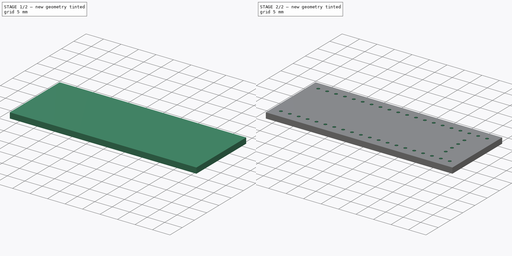
[diagram: build sequence overview — one tinted view per stage of 2, left to right]
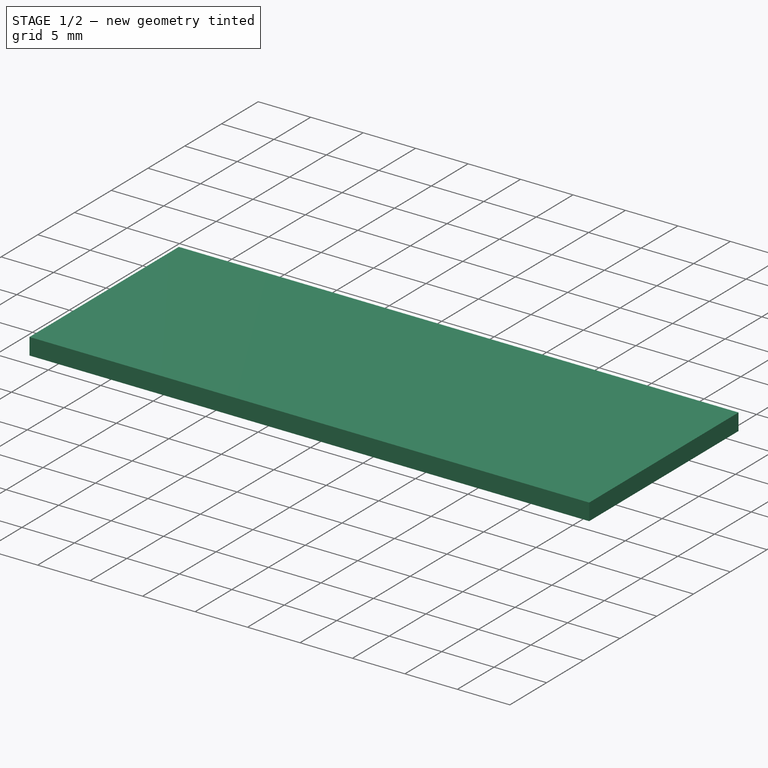
[diagram: stage 1 of 2 — iso view after this stage's code; geometry added in this stage tinted green]
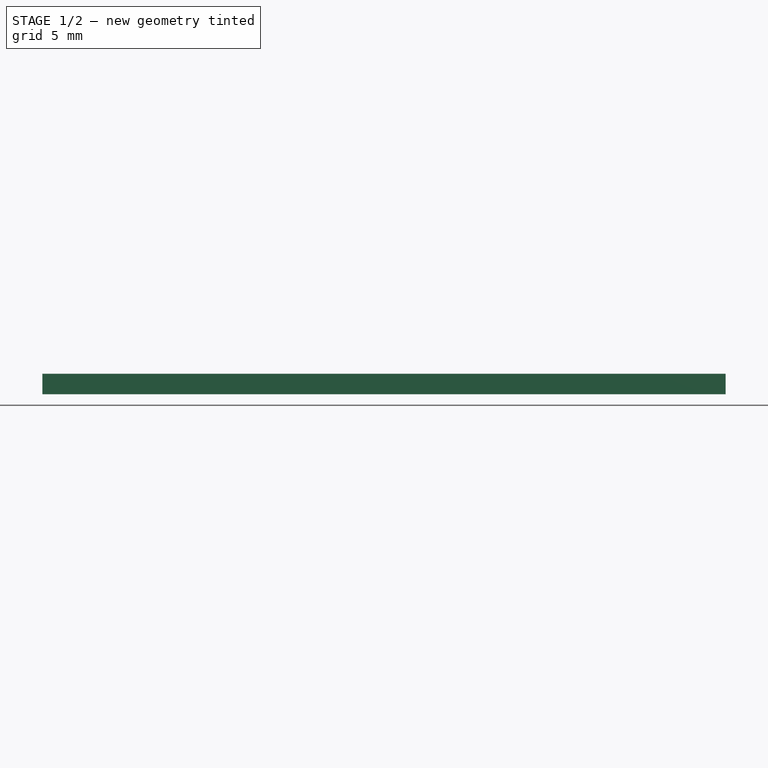
[diagram: stage 1 of 2 — front view after this stage's code; geometry added in this stage tinted green]
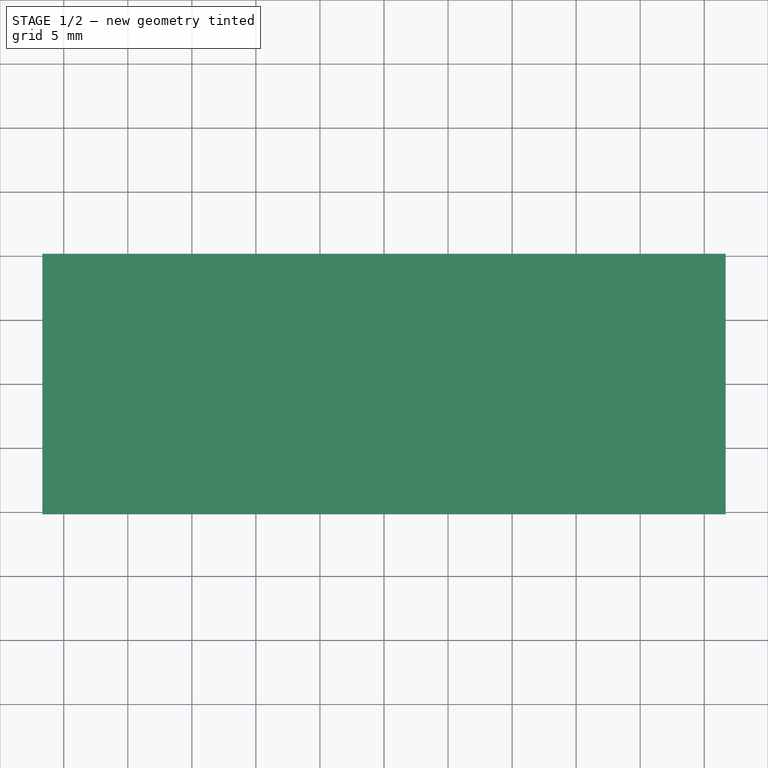
[diagram: stage 1 of 2 — top view after this stage's code; geometry added in this stage tinted green]
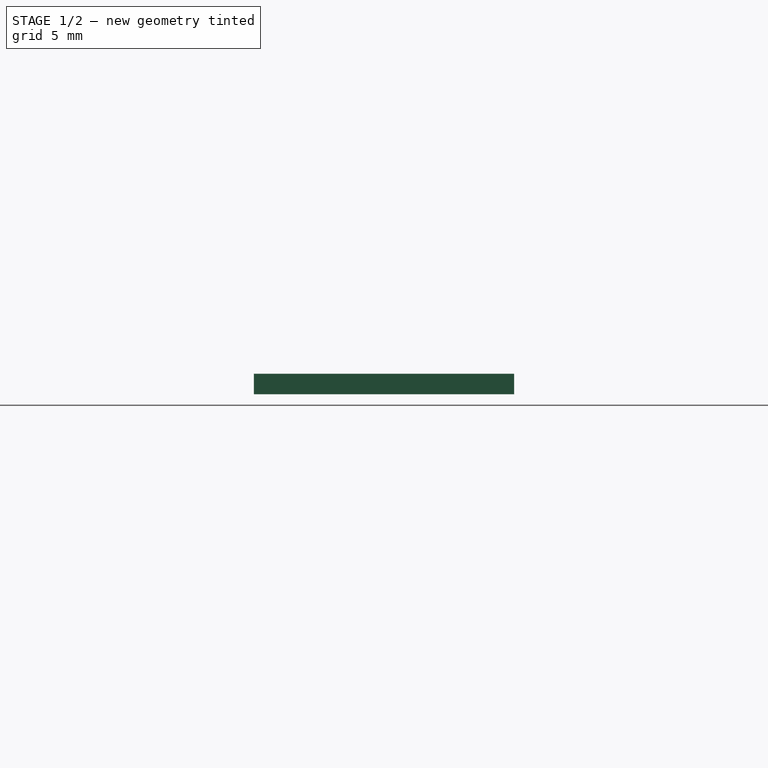
[diagram: stage 1 of 2 — right view after this stage's code; geometry added in this stage tinted green]
FCSTD DOCUMENT  (FreeCAD 0.20R29177 (Git))
Label: Board
License: All rights reserved
LicenseURL: http://en.wikipedia.org/wiki/All_rights_reserved
objects: Sketcher::SketchObject×2, PartDesign::Pad×1, PartDesign::Pocket×1, PartDesign::Body×1
note: 7 computed .brp shape members not serialized (recipe doc carries the construction recipe); baked Part::Feature solids carry a one-line shape summary decoded from their .brp

FEATURE [Sketcher::SketchObject] Sketch
  FullyConstrained = true
  MapMode = 5
  Support = -> [XY_Plane]
  sketch-geometry (4):
    g0: LineSegment StartX=-26.67 StartY=10.16 StartZ=0 EndX=26.67 EndY=10.16 EndZ=0
    g1: LineSegment StartX=26.67 StartY=10.16 StartZ=0 EndX=26.67 EndY=-10.16 EndZ=0
    g2: LineSegment StartX=26.67 StartY=-10.16 StartZ=0 EndX=-26.67 EndY=-10.16 EndZ=0
    g3: LineSegment StartX=-26.67 StartY=-10.16 StartZ=0 EndX=-26.67 EndY=10.16 EndZ=0
  constraints (11):
    c: Coincident(g0,g1)
    c: Coincident(g1,g2)
    c: Coincident(g2,g3)
    c: Coincident(g3,g0)
    c: Horizontal(g0)
    c: Horizontal(g2)
    c: Vertical(g1)
    c: Vertical(g3)
    c: Symmetric(g1,g0,g-1)
    c: DistanceY(g3,g3) = 20.32
    c: DistanceX(g0,g0) = 53.34
FEATURE [PartDesign::Pad] Pad
  Direction = (0,0,1)
  Length = 1.6
  Length2 = 10
  Profile = -> Sketch
  ReferenceAxis = -> Sketch [N_Axis]
  Reversed = true
  Type = 0
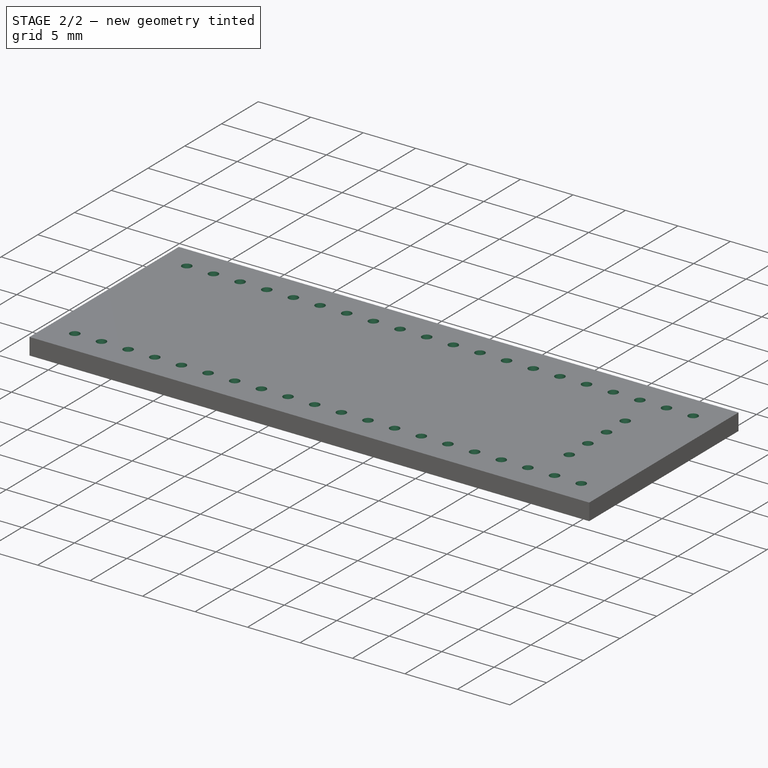
[diagram: stage 2 of 2 — iso view after this stage's code; geometry added in this stage tinted green]
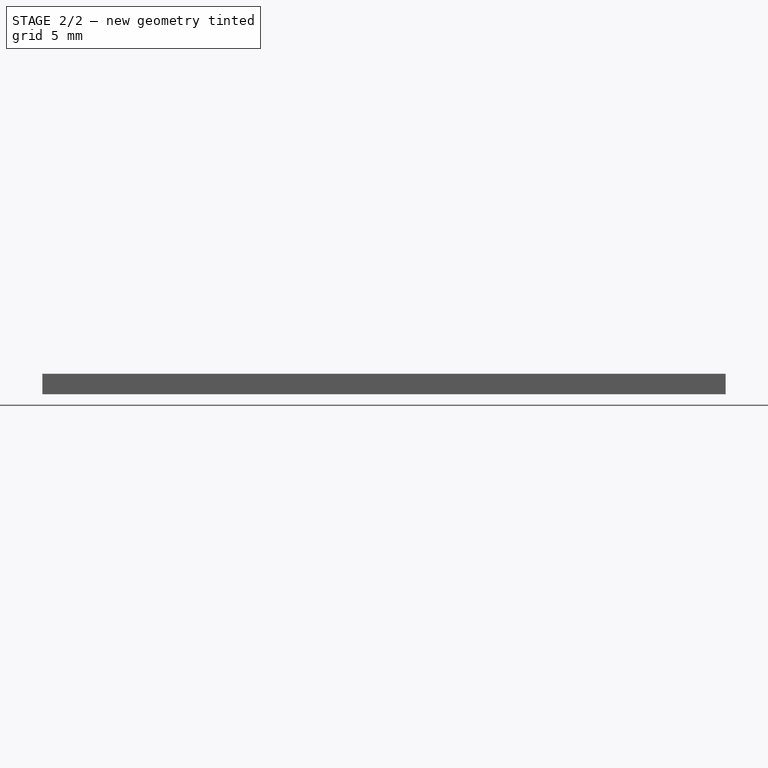
[diagram: stage 2 of 2 — front view after this stage's code; geometry added in this stage tinted green]
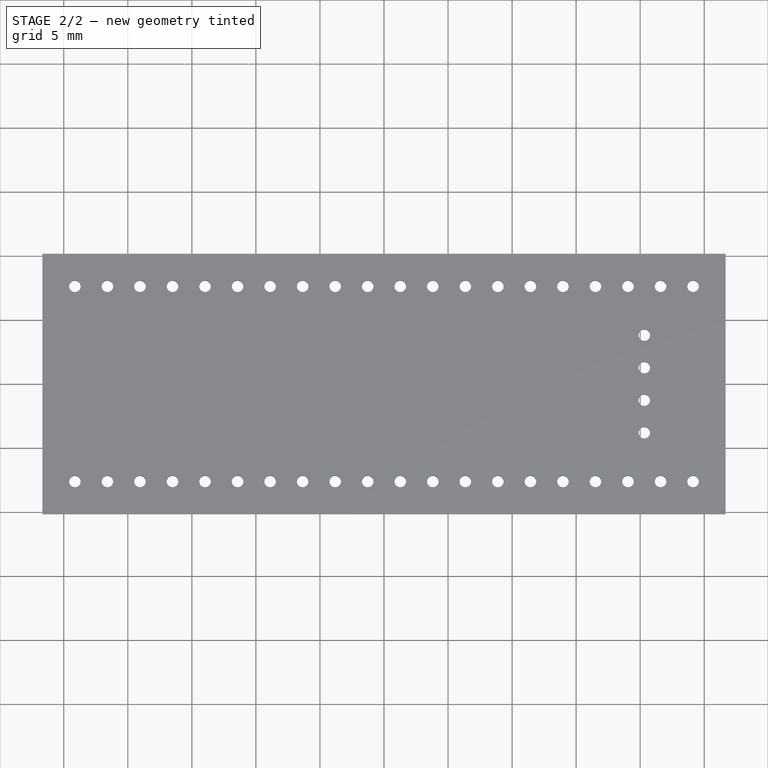
[diagram: stage 2 of 2 — top view after this stage's code; geometry added in this stage tinted green]
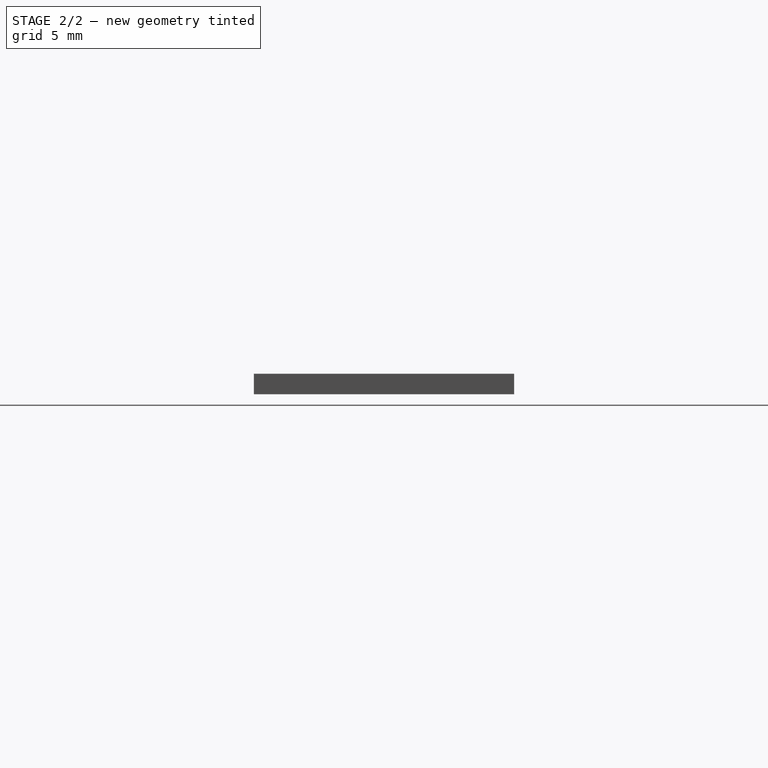
[diagram: stage 2 of 2 — right view after this stage's code; geometry added in this stage tinted green]
FEATURE [Sketcher::SketchObject] Sketch001
  FullyConstrained = true
  MapMode = 5
  Support = -> [Pad]
  sketch-geometry (87):
    g0: LineSegment StartX=-24.13 StartY=7.62 StartZ=0 EndX=-21.59 EndY=7.61999 EndZ=0
    g1: LineSegment StartX=-21.59 StartY=7.61999 StartZ=0 EndX=-19.05 EndY=7.61999 EndZ=0
    g2: LineSegment StartX=-19.05 StartY=7.61999 StartZ=0 EndX=-16.51 EndY=7.61999 EndZ=0
    g3: LineSegment StartX=-16.51 StartY=7.61999 StartZ=0 EndX=-13.97 EndY=7.61999 EndZ=0
    g4: LineSegment StartX=-13.97 StartY=7.61999 StartZ=0 EndX=-11.43 EndY=7.61999 EndZ=0
    g5: LineSegment StartX=-11.43 StartY=7.61999 StartZ=0 EndX=-8.89 EndY=7.61999 EndZ=0
    g6: LineSegment StartX=-8.89 StartY=7.61999 StartZ=0 EndX=-6.35 EndY=7.61999 EndZ=0
    g7: LineSegment StartX=-6.35 StartY=7.61999 StartZ=0 EndX=-3.81 EndY=7.61999 EndZ=0
    g8: LineSegment StartX=-3.81 StartY=7.61999 StartZ=0 EndX=-1.27 EndY=7.61999 EndZ=0
    g9: LineSegment StartX=-1.27 StartY=7.61999 StartZ=0 EndX=1.27 EndY=7.61999 EndZ=0
    g10: LineSegment StartX=1.27 StartY=7.61999 StartZ=0 EndX=3.81 EndY=7.61999 EndZ=0
    g11: LineSegment StartX=3.81 StartY=7.61999 StartZ=0 EndX=6.35 EndY=7.61999 EndZ=0
    g12: LineSegment StartX=6.35 StartY=7.61999 StartZ=0 EndX=8.89 EndY=7.61999 EndZ=0
    g13: LineSegment StartX=8.89 StartY=7.61999 StartZ=0 EndX=11.43 EndY=7.61999 EndZ=0
    g14: LineSegment StartX=11.43 StartY=7.61999 StartZ=0 EndX=13.97 EndY=7.61999 EndZ=0
    g15: LineSegment StartX=13.97 StartY=7.61999 StartZ=0 EndX=16.51 EndY=7.61999 EndZ=0
    g16: LineSegment StartX=16.51 StartY=7.61999 StartZ=0 EndX=19.05 EndY=7.61999 EndZ=0
    g17: LineSegment StartX=19.05 StartY=7.61999 StartZ=0 EndX=21.59 EndY=7.61999 EndZ=0
    g18: LineSegment StartX=21.59 StartY=7.61999 StartZ=0 EndX=24.13 EndY=7.61999 EndZ=0
    g19: LineSegment StartX=-24.13 StartY=-7.62 StartZ=0 EndX=-21.59 EndY=-7.62 EndZ=0
    g20: LineSegment StartX=-21.59 StartY=-7.62 StartZ=0 EndX=-19.05 EndY=-7.62 EndZ=0
    g21: LineSegment StartX=-19.05 StartY=-7.62 StartZ=0 EndX=-16.51 EndY=-7.62 EndZ=0
    g22: LineSegment StartX=-16.51 StartY=-7.62 StartZ=0 EndX=-13.97 EndY=-7.62 EndZ=0
    g23: LineSegment StartX=-13.97 StartY=-7.62 StartZ=0 EndX=-11.43 EndY=-7.62 EndZ=0
    g24: LineSegment StartX=-11.43 StartY=-7.62 StartZ=0 EndX=-8.89 EndY=-7.62 EndZ=0
    g25: LineSegment StartX=-8.89 StartY=-7.62 StartZ=0 EndX=-6.35 EndY=-7.62 EndZ=0
    g26: LineSegment StartX=-6.35 StartY=-7.62 StartZ=0 EndX=-3.81 EndY=-7.62 EndZ=0
    g27: LineSegment StartX=-3.81 StartY=-7.62 StartZ=0 EndX=-1.27 EndY=-7.62 EndZ=0
    g28: LineSegment StartX=-1.27 StartY=-7.62 StartZ=0 EndX=1.27 EndY=-7.62 EndZ=0
    g29: LineSegment StartX=1.27 StartY=-7.62 StartZ=0 EndX=3.81 EndY=-7.62 EndZ=0
    g30: LineSegment StartX=3.81 StartY=-7.62 StartZ=0 EndX=6.35 EndY=-7.62 EndZ=0
    g31: LineSegment StartX=6.35 StartY=-7.62 StartZ=0 EndX=8.89 EndY=-7.62 EndZ=0
    g32: LineSegment StartX=8.89 StartY=-7.62 StartZ=0 EndX=11.43 EndY=-7.62 EndZ=0
    g33: LineSegment StartX=11.43 StartY=-7.62 StartZ=0 EndX=13.97 EndY=-7.62 EndZ=0
    g34: LineSegment StartX=13.97 StartY=-7.62 StartZ=0 EndX=16.51 EndY=-7.62 EndZ=0
    g35: LineSegment StartX=16.51 StartY=-7.62 StartZ=0 EndX=19.05 EndY=-7.62 EndZ=0
    g36: LineSegment StartX=19.05 StartY=-7.62 StartZ=0 EndX=21.59 EndY=-7.62 EndZ=0
    g37: LineSegment StartX=21.59 StartY=-7.62 StartZ=0 EndX=24.13 EndY=-7.62 EndZ=0
    g38: Circle CenterX=-24.13 CenterY=7.62 CenterZ=0 NormalX=0 NormalY=0 NormalZ=1 AngleXU=0 Radius=0.45
    g39: Circle CenterX=-21.59 CenterY=7.61999 CenterZ=0 NormalX=0 NormalY=0 NormalZ=1 AngleXU=0 Radius=0.45
    g40: Circle CenterX=-19.05 CenterY=7.61999 CenterZ=0 NormalX=0 NormalY=0 NormalZ=1 AngleXU=0 Radius=0.45
    g41: Circle CenterX=-16.51 CenterY=7.61999 CenterZ=0 NormalX=0 NormalY=0 NormalZ=1 AngleXU=0 Radius=0.45
    g42: Circle CenterX=-13.97 CenterY=7.61999 CenterZ=0 NormalX=0 NormalY=0 NormalZ=1 AngleXU=0 Radius=0.45
    g43: Circle CenterX=-11.43 CenterY=7.61999 CenterZ=0 NormalX=0 NormalY=0 NormalZ=1 AngleXU=0 Radius=0.45
    g44: Circle CenterX=-8.89 CenterY=7.61999 CenterZ=0 NormalX=0 NormalY=0 NormalZ=1 AngleXU=0 Radius=0.45
    g45: Circle CenterX=-6.35 CenterY=7.61999 CenterZ=0 NormalX=0 NormalY=0 NormalZ=1 AngleXU=0 Radius=0.45
    g46: Circle CenterX=-3.81 CenterY=7.61999 CenterZ=0 NormalX=0 NormalY=0 NormalZ=1 AngleXU=0 Radius=0.45
    g47: Circle CenterX=-1.27 CenterY=7.61999 CenterZ=0 NormalX=0 NormalY=0 NormalZ=1 AngleXU=0 Radius=0.45
    g48: Circle CenterX=1.27 CenterY=7.61999 CenterZ=0 NormalX=0 NormalY=0 NormalZ=1 AngleXU=0 Radius=0.45
    g49: Circle CenterX=3.81 CenterY=7.61999 CenterZ=0 NormalX=0 NormalY=0 NormalZ=1 AngleXU=0 Radius=0.45
    g50: Circle CenterX=6.35 CenterY=7.61999 CenterZ=0 NormalX=0 NormalY=0 NormalZ=1 AngleXU=0 Radius=0.45
    g51: Circle CenterX=8.89 CenterY=7.61999 CenterZ=0 NormalX=0 NormalY=0 NormalZ=1 AngleXU=0 Radius=0.45
    g52: Circle CenterX=11.43 CenterY=7.61999 CenterZ=0 NormalX=0 NormalY=0 NormalZ=1 AngleXU=0 Radius=0.45
    g53: Circle CenterX=13.97 CenterY=7.61999 CenterZ=0 NormalX=0 NormalY=0 NormalZ=1 AngleXU=0 Radius=0.45
    g54: Circle CenterX=16.51 CenterY=7.61999 CenterZ=0 NormalX=0 NormalY=0 NormalZ=1 AngleXU=0 Radius=0.45
    g55: Circle CenterX=19.05 CenterY=7.61999 CenterZ=0 NormalX=0 NormalY=0 NormalZ=1 AngleXU=0 Radius=0.45
    g56: Circle CenterX=21.59 CenterY=7.61999 CenterZ=0 NormalX=0 NormalY=0 NormalZ=1 AngleXU=0 Radius=0.45
    g57: Circle CenterX=24.13 CenterY=7.61999 CenterZ=0 NormalX=0 NormalY=0 NormalZ=1 AngleXU=0 Radius=0.45
    g58: Circle CenterX=-24.13 CenterY=-7.62 CenterZ=0 NormalX=0 NormalY=0 NormalZ=1 AngleXU=0 Radius=0.45
    g59: Circle CenterX=-21.59 CenterY=-7.62 CenterZ=0 NormalX=0 NormalY=0 NormalZ=1 AngleXU=0 Radius=0.45
    g60: Circle CenterX=-19.05 CenterY=-7.62 CenterZ=0 NormalX=0 NormalY=0 NormalZ=1 AngleXU=0 Radius=0.45
    g61: Circle CenterX=-16.51 CenterY=-7.62 CenterZ=0 NormalX=0 NormalY=0 NormalZ=1 AngleXU=0 Radius=0.45
    g62: Circle CenterX=-13.97 CenterY=-7.62 CenterZ=0 NormalX=0 NormalY=0 NormalZ=1 AngleXU=0 Radius=0.45
    g63: Circle CenterX=-11.43 CenterY=-7.62 CenterZ=0 NormalX=0 NormalY=0 NormalZ=1 AngleXU=0 Radius=0.45
    g64: Circle CenterX=-8.89 CenterY=-7.62 CenterZ=0 NormalX=0 NormalY=0 NormalZ=1 AngleXU=0 Radius=0.45
    g65: Circle CenterX=-6.35 CenterY=-7.62 CenterZ=0 NormalX=0 NormalY=0 NormalZ=1 AngleXU=0 Radius=0.45
    g66: Circle CenterX=-3.81 CenterY=-7.62 CenterZ=0 NormalX=0 NormalY=0 NormalZ=1 AngleXU=0 Radius=0.45
    g67: Circle CenterX=-1.27 CenterY=-7.62 CenterZ=0 NormalX=0 NormalY=0 NormalZ=1 AngleXU=0 Radius=0.45
    g68: Circle CenterX=1.27 CenterY=-7.62 CenterZ=0 NormalX=0 NormalY=0 NormalZ=1 AngleXU=0 Radius=0.45
    g69: Circle CenterX=3.81 CenterY=-7.62 CenterZ=0 NormalX=0 NormalY=0 NormalZ=1 AngleXU=0 Radius=0.45
    g70: Circle CenterX=6.35 CenterY=-7.62 CenterZ=0 NormalX=0 NormalY=0 NormalZ=1 AngleXU=0 Radius=0.45
    g71: Circle CenterX=8.89 CenterY=-7.62 CenterZ=0 NormalX=0 NormalY=0 NormalZ=1 AngleXU=0 Radius=0.45
    g72: Circle CenterX=11.43 CenterY=-7.62 CenterZ=0 NormalX=0 NormalY=0 NormalZ=1 AngleXU=0 Radius=0.45
    g73: Circle CenterX=13.97 CenterY=-7.62 CenterZ=0 NormalX=0 NormalY=0 NormalZ=1 AngleXU=0 Radius=0.45
    g74: Circle CenterX=16.51 CenterY=-7.62 CenterZ=0 NormalX=0 NormalY=0 NormalZ=1 AngleXU=0 Radius=0.45
    g75: Circle CenterX=19.05 CenterY=-7.62 CenterZ=0 NormalX=0 NormalY=0 NormalZ=1 AngleXU=0 Radius=0.45
    g76: Circle CenterX=21.59 CenterY=-7.62 CenterZ=0 NormalX=0 NormalY=0 NormalZ=1 AngleXU=0 Radius=0.45
    g77: Circle CenterX=24.13 CenterY=-7.62 CenterZ=0 NormalX=0 NormalY=0 NormalZ=1 AngleXU=0 Radius=0.45
    g78: LineSegment StartX=20.32 StartY=3.81 StartZ=0 EndX=20.32 EndY=1.27 EndZ=0
    g79: LineSegment StartX=20.32 StartY=1.27 StartZ=0 EndX=20.32 EndY=-1.27 EndZ=0
    g80: LineSegment StartX=20.32 StartY=-1.27 StartZ=0 EndX=20.32 EndY=-3.81 EndZ=0
    g81: LineSegment StartX=19.05 StartY=7.61999 StartZ=0 EndX=20.32 EndY=3.81 EndZ=0
    g82: LineSegment StartX=20.32 StartY=3.81 StartZ=0 EndX=21.59 EndY=7.61999 EndZ=0
    g83: Circle CenterX=20.32 CenterY=3.81 CenterZ=0 NormalX=0 NormalY=0 NormalZ=1 AngleXU=0 Radius=0.45
    g84: Circle CenterX=20.32 CenterY=1.27 CenterZ=0 NormalX=0 NormalY=0 NormalZ=1 AngleXU=0 Radius=0.45
    g85: Circle CenterX=20.32 CenterY=-1.27 CenterZ=0 NormalX=0 NormalY=0 NormalZ=1 AngleXU=0 Radius=0.45
    g86: Circle CenterX=20.32 CenterY=-3.81 CenterZ=0 NormalX=0 NormalY=0 NormalZ=1 AngleXU=0 Radius=0.45
  constraints (176):
    c: Coincident(g0,g1)
    c: Horizontal(g1)
    c: Coincident(g1,g2)
    c: Horizontal(g2)
    c: Coincident(g2,g3)
    c: Horizontal(g3)
    c: Coincident(g3,g4)
    c: Horizontal(g4)
    c: Coincident(g4,g5)
    c: Horizontal(g5)
    c: Coincident(g5,g6)
    c: Horizontal(g6)
    c: Coincident(g6,g7)
    c: Horizontal(g7)
    c: Coincident(g7,g8)
    c: Horizontal(g8)
    c: Coincident(g8,g9)
    c: Coincident(g9,g10)
    c: Coincident(g10,g11)
    c: Coincident(g11,g12)
    c: Horizontal(g12)
    c: Coincident(g12,g13)
    c: Horizontal(g13)
    c: Coincident(g13,g14)
    c: Horizontal(g14)
    c: Coincident(g14,g15)
    c: Horizontal(g15)
    c: Coincident(g15,g16)
    c: Coincident(g16,g17)
    c: Horizontal(g17)
    c: Coincident(g17,g18)
    c: Horizontal(g18)
    c: Horizontal(g11)
    c: Horizontal(g10)
    c: Horizontal(g19)
    c: Coincident(g19,g20)
    c: Coincident(g20,g21)
    c: Coincident(g21,g22)
    c: Horizontal(g22)
    c: Coincident(g22,g23)
    c: Horizontal(g23)
    c: Coincident(g23,g24)
    c: Horizontal(g24)
    c: Coincident(g24,g25)
    c: Horizontal(g25)
    c: Coincident(g25,g26)
    c: Horizontal(g26)
    c: Coincident(g26,g27)
    c: Horizontal(g27)
    c: Coincident(g27,g28)
    c: Coincident(g28,g29)
    c: Horizontal(g29)
    c: Coincident(g29,g30)
    c: Horizontal(g30)
    c: Coincident(g30,g31)
    c: Coincident(g31,g32)
    c: Coincident(g32,g33)
    c: Horizontal(g33)
    c: Coincident(g33,g34)
    c: Horizontal(g34)
    c: Coincident(g34,g35)
    c: Horizontal(g35)
    c: Coincident(g35,g36)
    c: Coincident(g36,g37)
    c: Horizontal(g37)
    c: Horizontal(g32)
    c: Horizontal(g31)
    c: Horizontal(g21)
    c: Horizontal(g20)
    c: Horizontal(g36)
    c: Equal(g0,g1)
    c: Equal(g1,g2)
    c: Equal(g2,g3)
    c: Equal(g3,g4)
    c: Equal(g4,g5)
    c: Equal(g5,g6)
    c: Equal(g6,g7)
    c: Equal(g7,g8)
    c: Equal(g8,g9)
    c: Equal(g9,g10)
    c: Equal(g10,g11)
    c: Equal(g11,g12)
    c: Equal(g12,g13)
    c: Equal(g13,g14)
    c: Equal(g14,g15)
    c: Equal(g15,g16)
    c: Equal(g16,g17)
    c: Equal(g17,g18)
    c: Equal(g18,g19)
    c: Equal(g19,g20)
    c: Equal(g20,g21)
    c: Equal(g21,g22)
    c: Equal(g22,g23)
    c: Equal(g23,g24)
    c: Equal(g24,g25)
    c: Equal(g25,g26)
    c: Equal(g26,g27)
    c: Equal(g27,g28)
    c: Equal(g28,g29)
    c: Equal(g29,g30)
    c: Equal(g30,g31)
    c: Equal(g31,g32)
    c: Equal(g32,g33)
    c: Equal(g33,g34)
    c: Equal(g34,g35)
    c: Equal(g35,g36)
    c: Equal(g36,g37)
    c: DistanceX(g19,g19) = 2.54
    c: Horizontal(g16)
    c: Symmetric(g8,g9,g-2)
    c: Symmetric(g27,g28,g-2)
    c: DistanceY(g19,g0) = 15.24
    c: Symmetric(g0,g19,g-1)
    c: Coincident(g38,g0)
    c: Coincident(g39,g0)
    c: Coincident(g40,g1)
    c: Coincident(g41,g2)
    c: Coincident(g42,g3)
    c: Coincident(g43,g4)
    c: Coincident(g44,g5)
    c: Coincident(g45,g6)
    c: Coincident(g46,g7)
    c: Coincident(g47,g8)
    c: Coincident(g48,g9)
    c: Coincident(g49,g10)
    c: Coincident(g50,g11)
    c: Coincident(g51,g12)
    c: Coincident(g52,g13)
    c: Coincident(g53,g14)
    c: Coincident(g54,g15)
    c: Coincident(g55,g16)
    c: Coincident(g56,g17)
    c: Coincident(g57,g18)
    c: Coincident(g58,g19)
    c: Coincident(g59,g19)
    c: Coincident(g60,g20)
    c: Coincident(g61,g21)
    c: Coincident(g62,g22)
    c: Coincident(g63,g23)
    c: Coincident(g64,g24)
    c: Coincident(g65,g25)
    c: Coincident(g66,g26)
    c: Coincident(g67,g27)
    c: Coincident(g68,g28)
    c: Coincident(g69,g29)
    c: Coincident(g70,g30)
    c: Coincident(g71,g31)
    c: Coincident(g72,g32)
    c: Coincident(g73,g33)
    c: Coincident(g74,g34)
    c: Coincident(g75,g35)
    c: Coincident(g76,g36)
    c: Coincident(g77,g37)
    c: Equal(g38, g39-g77) x39
    c: Diameter(g38) = 0.9
    c: Coincident(g78,g79)
    c: Coincident(g79,g80)
    c: Vertical(g80)
    c: Vertical(g78)
    c: Equal(g78,g79)
    c: Equal(g79,g80)
    c: Equal(g80,g18)
    c: Symmetric(g78,g79,g-1)
    c: Coincident(g81,g55)
    c: Coincident(g81,g78)
    c: Coincident(g82,g78)
    c: Coincident(g82,g56)
    c: Equal(g82,g81)
    c: Coincident(g83,g78)
    c: Coincident(g84,g78)
    c: Coincident(g85,g79)
    c: Coincident(g86,g80)
    c: Equal(g86,g85)
    c: Equal(g85,g84)
    c: Equal(g84,g83)
    c: Equal(g83,g57)
FEATURE [PartDesign::Pocket] Pocket
  BaseFeature = -> Pad
  Direction = (0,0,-1)
  Length = 5
  Length2 = 5
  Profile = -> Sketch001
  ReferenceAxis = -> Sketch001 [N_Axis]
  Type = 0
FEATURE [PartDesign::Body] Body
  Group = -> [Sketch,Pad,Sketch001,Pocket]
  Origin = -> Origin
  Tip = -> Pocket
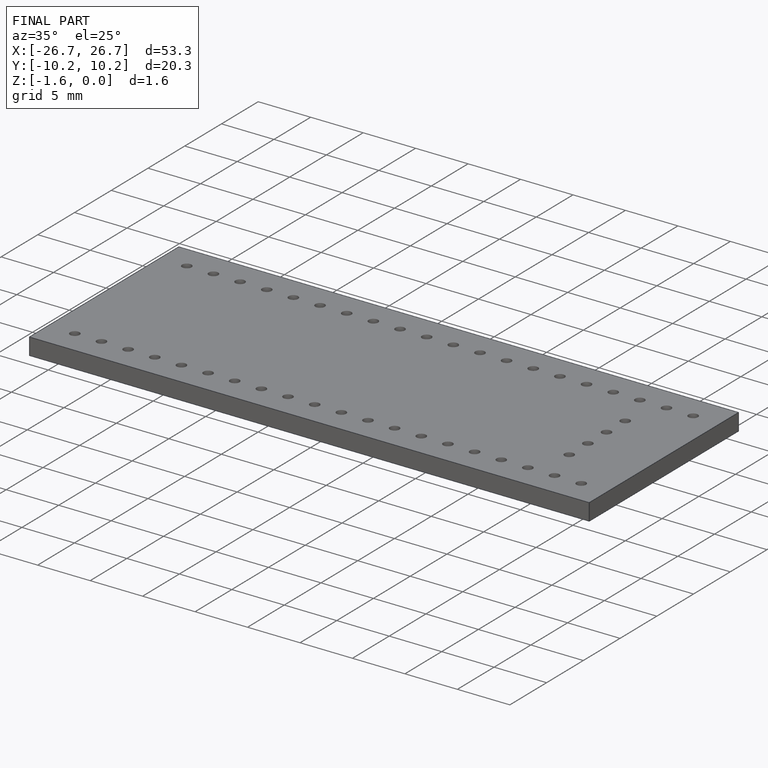
[diagram: finished part — iso view with bounding-box wireframe]
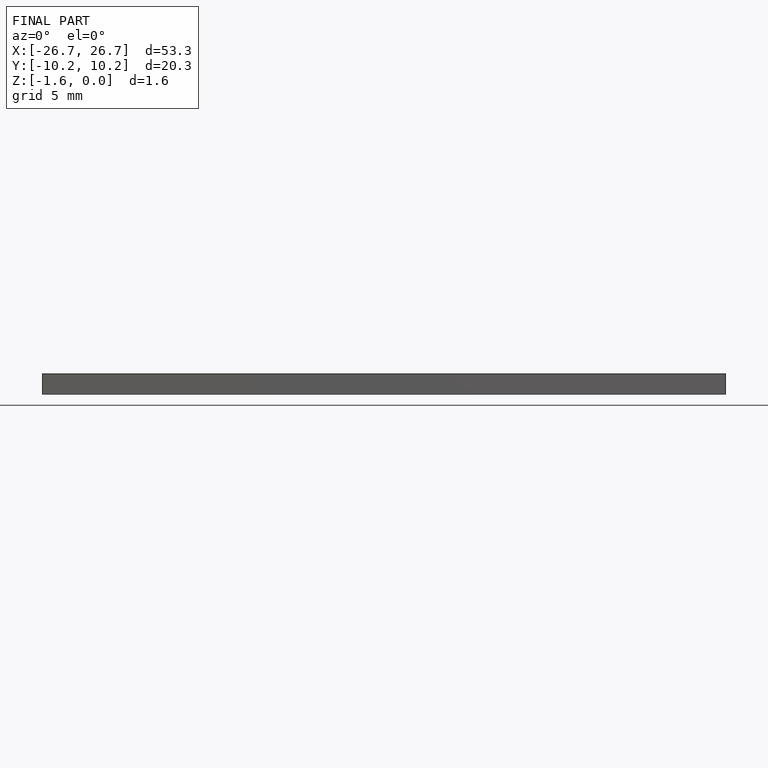
[diagram: finished part — front view with bounding-box wireframe]
